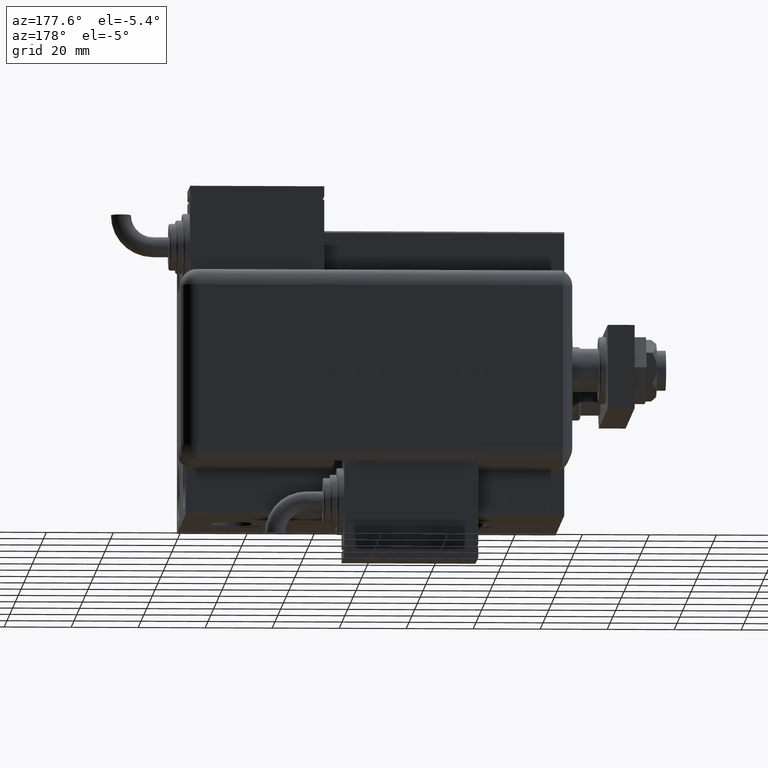
[diagram: clean part render]
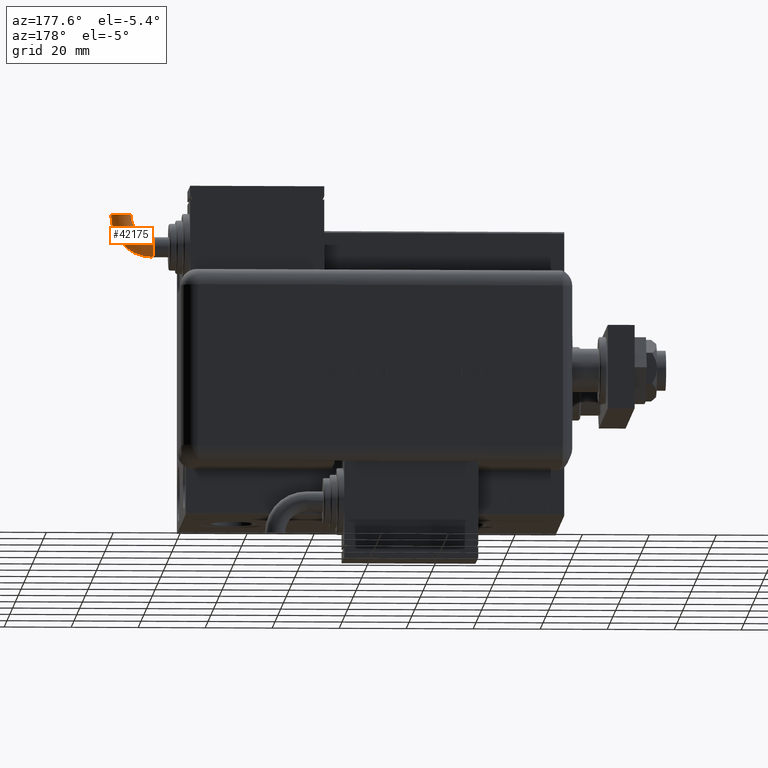
[diagram: same view with one face highlighted and labeled with its STEP entity id]
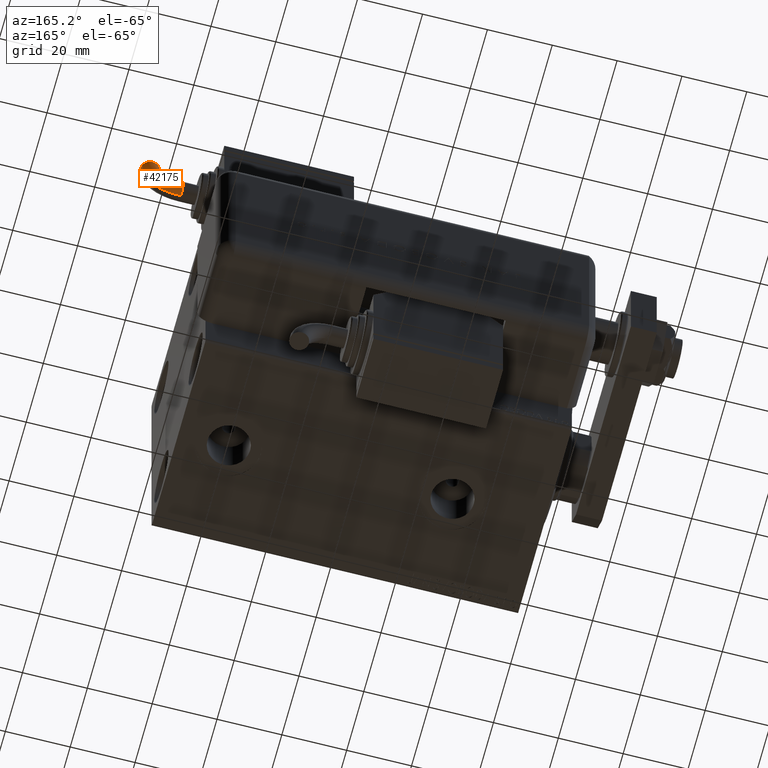
[diagram: same view with one face highlighted and labeled with its STEP entity id]
A machine part, auxiliary view. The second image highlights one B-rep face of the part: STEP entity #42175.
A second angle (auxiliary view) of the same face is appended — the face is thin or edge-on in the first view.
In plain terms, the highlighted toroidal blend (fillet) surface has major radius 9.5072 mm and minor (blend) radius 3 mm.
Its self-contained STEP definition (entity closure, byte-faithful):
#643 = ORIENTED_EDGE ( 'NONE', *, *, #4597, .T. ) ;
#901 = CIRCLE ( 'NONE', #41456, 2.999999999999996003 ) ;
#2581 = VERTEX_POINT ( 'NONE', #4388 ) ;
#3760 = DIRECTION ( 'NONE',  ( -0.9999999999726024713, -7.402363701169985951E-06, 0.000000000000000000 ) ) ;
#4112 = VERTEX_POINT ( 'NONE', #18046 ) ;
#4350 = CARTESIAN_POINT ( 'NONE',  ( -40.25922829605691078, -9.507281895111381331, 0.000000000000000000 ) ) ;
#4388 = CARTESIAN_POINT ( 'NONE',  ( -43.25922829597471519, -9.507304102202486007, 0.000000000000000000 ) ) ;
#4597 = EDGE_CURVE ( 'NONE', #34246, #17757, #20508, .T. ) ;
#5827 = DIRECTION ( 'NONE',  ( -1.156482317317872908E-15, 1.000000000000000000, 0.000000000000000000 ) ) ;
#6352 = CARTESIAN_POINT ( 'NONE',  ( -30.75201677704342629, 3.000000000000017319, 0.000000000000000000 ) ) ;
#9428 = ORIENTED_EDGE ( 'NONE', *, *, #40896, .F. ) ;
#9923 = EDGE_CURVE ( 'NONE', #17757, #2581, #54447, .T. ) ;
#13898 = AXIS2_PLACEMENT_3D ( 'NONE', #4350, #44557, #3760 ) ;
#17610 = CARTESIAN_POINT ( 'NONE',  ( -30.75201677704342274, -9.507211519273942812, -3.673940397442055924E-16 ) ) ;
#17757 = VERTEX_POINT ( 'NONE', #40287 ) ;
#18046 = CARTESIAN_POINT ( 'NONE',  ( -30.75201677704342274, 2.118407575146589373E-14, -2.999999999999997335 ) ) ;
#20508 = CIRCLE ( 'NONE', #25309, 6.507211519273966793 ) ;
#25309 = AXIS2_PLACEMENT_3D ( 'NONE', #17610, #45105, #36029 ) ;
#26881 = DIRECTION ( 'NONE',  ( 0.000000000000000000, 0.000000000000000000, 1.000000000000000000 ) ) ;
#27273 = EDGE_CURVE ( 'NONE', #34246, #4112, #901, .T. ) ;
#28506 = DIRECTION ( 'NONE',  ( 1.000000000000000000, 1.025520576932673761E-15, 0.000000000000000000 ) ) ;
#29099 = CARTESIAN_POINT ( 'NONE',  ( -30.75201677704342274, 2.081668171172168513E-14, 0.000000000000000000 ) ) ;
#29527 = TOROIDAL_SURFACE ( 'NONE', #42067, 9.507211519273964129, 2.999999999999996891 ) ;
#30766 = DIRECTION ( 'NONE',  ( 1.000000000000000000, 1.025520576932673761E-15, 0.000000000000000000 ) ) ;
#31757 = CIRCLE ( 'NONE', #46233, 2.999999999999996003 ) ;
#32472 = DIRECTION ( 'NONE',  ( 0.000000000000000000, 0.000000000000000000, 1.000000000000000000 ) ) ;
#34246 = VERTEX_POINT ( 'NONE', #38516 ) ;
#36029 = DIRECTION ( 'NONE',  ( 1.000000000000000000, 0.000000000000000000, 0.000000000000000000 ) ) ;
#36191 = CIRCLE ( 'NONE', #39090, 12.50721151927396058 ) ;
#37166 = VERTEX_POINT ( 'NONE', #6352 ) ;
#38516 = CARTESIAN_POINT ( 'NONE',  ( -30.75201677704341918, -2.999999999999976463, -3.673940397442056910E-16 ) ) ;
#39090 = AXIS2_PLACEMENT_3D ( 'NONE', #49837, #26881, #45307 ) ;
#40287 = CARTESIAN_POINT ( 'NONE',  ( -37.25922829613910636, -9.507259688020280208, -3.673940397551225891E-16 ) ) ;
#40896 = EDGE_CURVE ( 'NONE', #37166, #2581, #36191, .T. ) ;
#41456 = AXIS2_PLACEMENT_3D ( 'NONE', #29099, #28506, #5827 ) ;
#42067 = AXIS2_PLACEMENT_3D ( 'NONE', #51485, #32472, #42714 ) ;
#42175 = ADVANCED_FACE ( 'NONE', ( #56024 ), #29527, .T. ) ;
#42714 = DIRECTION ( 'NONE',  ( 1.000000000000000000, 0.000000000000000000, 0.000000000000000000 ) ) ;
#42795 = ORIENTED_EDGE ( 'NONE', *, *, #9923, .T. ) ;
#44557 = DIRECTION ( 'NONE',  ( -7.402363701065945741E-06, 0.9999999999726024713, 0.000000000000000000 ) ) ;
#45091 = ORIENTED_EDGE ( 'NONE', *, *, #55092, .F. ) ;
#45105 = DIRECTION ( 'NONE',  ( 0.000000000000000000, 0.000000000000000000, 1.000000000000000000 ) ) ;
#45307 = DIRECTION ( 'NONE',  ( 1.000000000000000000, 0.000000000000000000, 0.000000000000000000 ) ) ;
#46233 = AXIS2_PLACEMENT_3D ( 'NONE', #57660, #30766, #48301 ) ;
#47833 = EDGE_LOOP ( 'NONE', ( #9428, #45091, #56226, #643, #42795 ) ) ;
#48301 = DIRECTION ( 'NONE',  ( -1.156482317317872908E-15, 1.000000000000000000, 0.000000000000000000 ) ) ;
#49837 = CARTESIAN_POINT ( 'NONE',  ( -30.75201677704342274, -9.507211519273942812, 0.000000000000000000 ) ) ;
#51485 = CARTESIAN_POINT ( 'NONE',  ( -30.75201677704342274, -9.507211519273942812, 0.000000000000000000 ) ) ;
#54447 = CIRCLE ( 'NONE', #13898, 2.999999999999996891 ) ;
#55092 = EDGE_CURVE ( 'NONE', #4112, #37166, #31757, .T. ) ;
#56024 = FACE_OUTER_BOUND ( 'NONE', #47833, .T. ) ;
#56226 = ORIENTED_EDGE ( 'NONE', *, *, #27273, .F. ) ;
#57660 = CARTESIAN_POINT ( 'NONE',  ( -30.75201677704342274, 2.081668171172168513E-14, 0.000000000000000000 ) ) ;